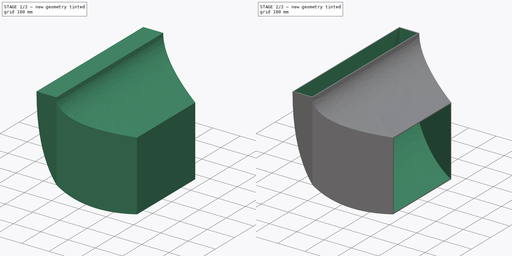
[diagram: build sequence overview — one tinted view per stage of 2, left to right]
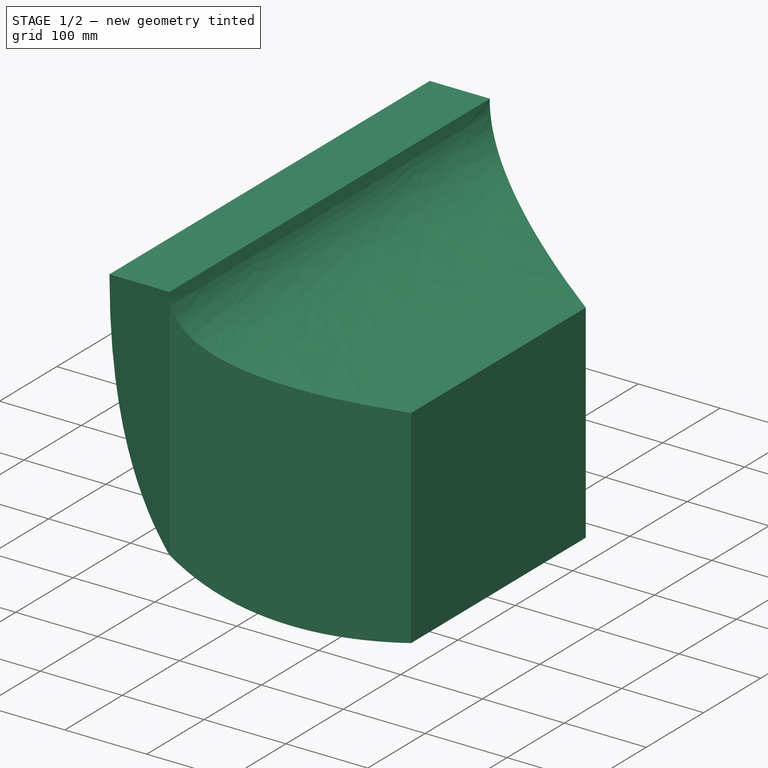
[diagram: stage 1 of 2 — iso view after this stage's code; geometry added in this stage tinted green]
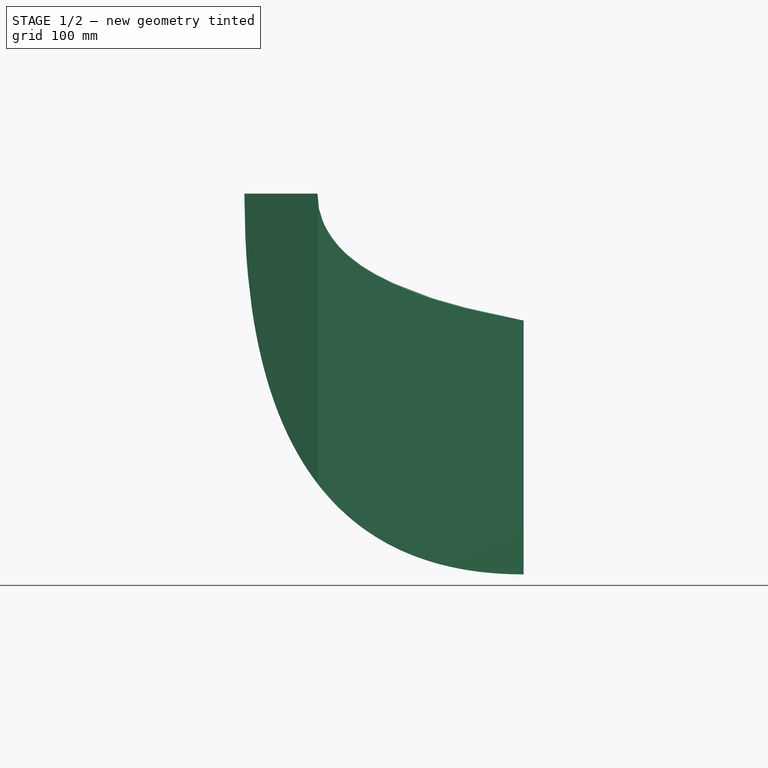
[diagram: stage 1 of 2 — front view after this stage's code; geometry added in this stage tinted green]
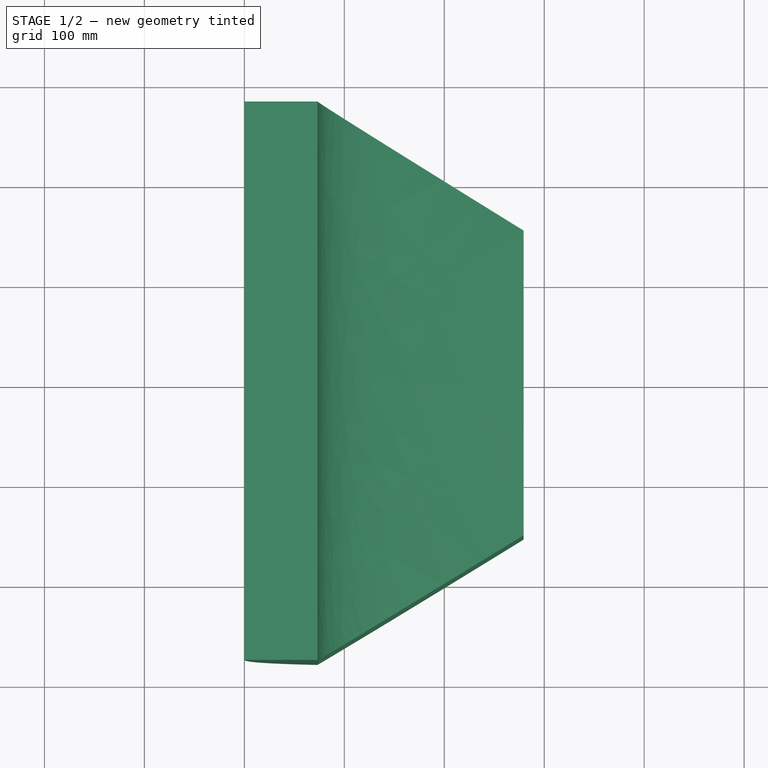
[diagram: stage 1 of 2 — top view after this stage's code; geometry added in this stage tinted green]
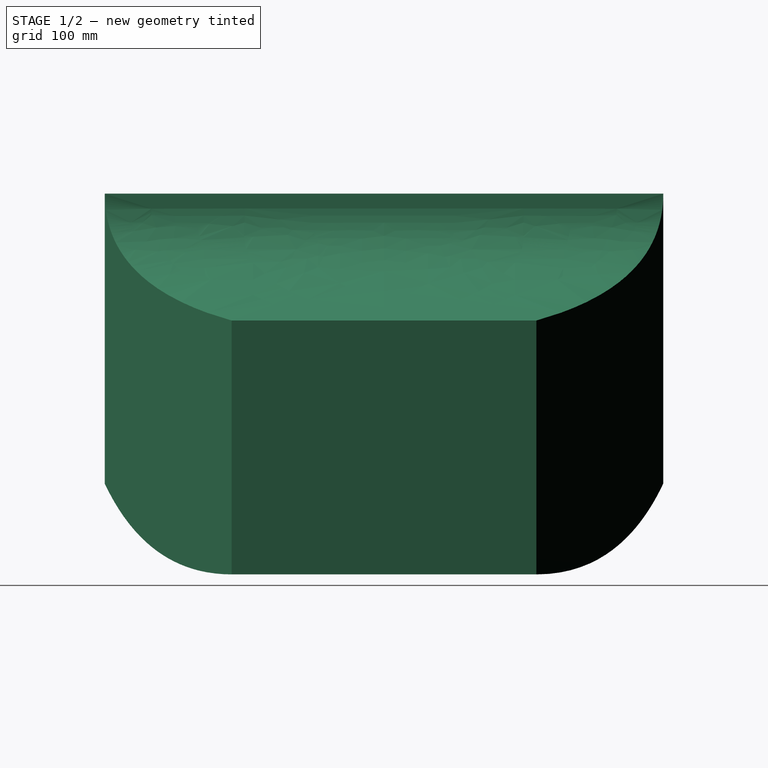
[diagram: stage 1 of 2 — right view after this stage's code; geometry added in this stage tinted green]
FCSTD DOCUMENT  (FreeCAD 1.1R40971 (Git))
Label: elbow
License: All rights reserved
LicenseURL: http://en.wikipedia.org/wiki/All_rights_reserved
objects: Sketcher::SketchObject×2, PartDesign::Pad×1, PartDesign::Pocket×1, App::Point×1, PartDesign::Thickness×1, PartDesign::Body×1
note: 14 computed .brp shape members not serialized (recipe doc carries the construction recipe); baked Part::Feature solids carry a one-line shape summary decoded from their .brp

FEATURE [Sketcher::SketchObject] Sketch001  label="elbowsk"
  ArcFitTolerance = 1e-06
  AttachmentSupport = -> [XZ_Plane]
  ExternalTypes = [0]
  FullyConstrained = false
  MakeInternals = false
  MapMode = 5
  Placement = pos=(0,0,0) rot=(1,0,0;1.5708rad)
  sketch-geometry (18):
    g0: LineSegment StartX=279.4 StartY=-234.95 StartZ=0 EndX=279.4 EndY=-488.95 EndZ=0
    g1: LineSegment [constr] StartX=279.4 StartY=-234.95 StartZ=0 EndX=558.8 EndY=-292.581 EndZ=0
    g2: LineSegment [constr] StartX=558.8 StartY=-292.581 StartZ=0 EndX=558.8 EndY=-444.981 EndZ=0
    g3: LineSegment [constr] StartX=558.8 StartY=-444.981 StartZ=0 EndX=279.4 EndY=-488.95 EndZ=0
    g4: LineSegment [constr] StartX=279.4 StartY=-361.95 StartZ=0 EndX=558.8 EndY=-371.348 EndZ=0
    g5: LineSegment StartX=0 StartY=-107.95 StartZ=0 EndX=73.152 EndY=-107.95 EndZ=0
    g6: Circle [constr] CenterX=0 CenterY=-107.95 CenterZ=0 NormalX=0 NormalY=0 NormalZ=1 AngleXU=0 Radius=1
    g7: Circle [constr] CenterX=0 CenterY=-488.95 CenterZ=0 NormalX=0 NormalY=0 NormalZ=1 AngleXU=0 Radius=1
    g8: Circle [constr] CenterX=279.4 CenterY=-488.95 CenterZ=0 NormalX=0 NormalY=0 NormalZ=1 AngleXU=0 Radius=1
    g9: BSplineCurve PolesCount=3 KnotsCount=2 Degree=2 IsPeriodic=0
    g10: GeomPoint [constr] X=0 Y=-107.95 Z=0
    g11: GeomPoint [constr] X=279.4 Y=-488.95 Z=0
    g12: Circle [constr] CenterX=73.152 CenterY=-107.95 CenterZ=0 NormalX=0 NormalY=0 NormalZ=1 AngleXU=0 Radius=1
    g13: Circle [constr] CenterX=73.152 CenterY=-199.743 CenterZ=0 NormalX=0 NormalY=0 NormalZ=1 AngleXU=0 Radius=1
    g14: Circle [constr] CenterX=279.4 CenterY=-234.95 CenterZ=0 NormalX=0 NormalY=0 NormalZ=1 AngleXU=0 Radius=1
    g15: BSplineCurve PolesCount=3 KnotsCount=2 Degree=2 IsPeriodic=0
    g16: GeomPoint [constr] X=73.152 Y=-107.95 Z=0
    g17: GeomPoint [constr] X=279.4 Y=-234.95 Z=0
  constraints (43):
    c: Vertical(g0)
    c: DistanceY(g0,g0) = 254
    c: Vertical(g2)
    c: DistanceX(g3,g3) = 279.4
    c: Coincident(g2,g3)
    c: Coincident(g1,g2)
    c: Coincident(g1,g0)
    c: DistanceY(g2,g1) = 152.4
    c: PointOnObject(g4,g2)
    c: Symmetric(g0,g0,g4)
    c: Horizontal(g5)
    c: DistanceY(g5,g-1) = 107.95
    c: DistanceX(g5,g5) = 73.152
    c: DistanceX(g5,g2) = 558.8
    c: Vertical(g5,g-1)
    c: Weight(g6) = 1
    c: Equal(g6,g7)
    c: Equal(g6,g8)
    c: InternalAlignment(g6,g9)
    c: InternalAlignment(g7,g9)
    c: InternalAlignment(g8,g9)
    c: InternalAlignment(g10,g9)
    c: InternalAlignment(g11,g9)
    c: Coincident(g6,g5)
    c: Coincident(g8,g0)
    c: Weight(g12) = 1
    c: Equal(g12,g13)
    c: Equal(g12,g14)
    c: InternalAlignment(g12,g15)
    c: InternalAlignment(g13,g15)
    c: InternalAlignment(g14,g15)
    c: InternalAlignment(g16,g15)
    c: InternalAlignment(g17,g15)
    c: Coincident(g12,g5)
    c: Coincident(g14,g0)
    c: DistanceY(g9,g4) = 117.602
    c: DistanceY(g9,g9) = 381
    c: DistanceX(g9,g9) = 279.4
    c: PointOnObject(g7,g-2)
    c: Vertical(g13,g15)
    c: Horizontal(g7,g9)
    c: Coincident(g9,g3)
    c: DistanceY(g4,g4) = 9.398
FEATURE [PartDesign::Pad] Pad
  Direction = (0,-1,2e-16)
  Length = 558.8
  Length2 = 10
  Midplane = true
  Placement = pos=(0,0,0) rot=(1,0,0;1.5708rad)
  Profile = -> Sketch001
  ReferenceAxis = -> Sketch001 [N_Axis]
  Suppressed = false
  Type = 0
FEATURE [Sketcher::SketchObject] Sketch005  label="straightwall"
  ArcFitTolerance = 1e-06
  AttachmentSupport = -> [XY_Plane]
  ExternalTypes = [0]
  FullyConstrained = true
  MakeInternals = false
  MapMode = 5
  sketch-geometry (17):
    g0: LineSegment StartX=73.152 StartY=279.4 StartZ=0 EndX=279.4 EndY=152.4 EndZ=0
    g1: LineSegment StartX=279.4 StartY=152.4 StartZ=0 EndX=279.4 EndY=-152.4 EndZ=0
    g2: LineSegment StartX=279.4 StartY=-152.4 StartZ=0 EndX=73.152 EndY=-279.4 EndZ=0
    g3: LineSegment StartX=73.152 StartY=-317.5 StartZ=0 EndX=352.552 EndY=-317.5 EndZ=0
    g4: LineSegment StartX=352.552 StartY=-317.5 StartZ=0 EndX=352.552 EndY=317.5 EndZ=0
    g5: LineSegment StartX=352.552 StartY=317.5 StartZ=0 EndX=73.152 EndY=317.5 EndZ=0
    g6: LineSegment [constr] StartX=73.152 StartY=279.4 StartZ=0 EndX=73.152 EndY=-279.4 EndZ=0
    g7: LineSegment StartX=73.152 StartY=279.4 StartZ=0 EndX=11.2776 EndY=317.5 EndZ=0
    g8: LineSegment StartX=73.152 StartY=317.5 StartZ=0 EndX=11.2776 EndY=317.5 EndZ=0
    g9: LineSegment StartX=73.152 StartY=-279.4 StartZ=0 EndX=11.2776 EndY=-317.5 EndZ=0
    g10: LineSegment StartX=11.2776 StartY=-317.5 StartZ=0 EndX=73.152 EndY=-317.5 EndZ=0
    g11: LineSegment [constr] StartX=0 StartY=317.5 StartZ=0 EndX=0 EndY=-317.5 EndZ=0
    g12: LineSegment [constr] StartX=0 StartY=279.4 StartZ=0 EndX=352.552 EndY=279.4 EndZ=0
    g13: LineSegment [constr] StartX=279.4 StartY=152.4 StartZ=0 EndX=558.8 EndY=76.2 EndZ=0
    g14: LineSegment [constr] StartX=558.8 StartY=76.2 StartZ=0 EndX=558.8 EndY=-76.2 EndZ=0
    g15: LineSegment [constr] StartX=558.8 StartY=-76.2 StartZ=0 EndX=279.4 EndY=-152.4 EndZ=0
    g16: LineSegment [constr] StartX=0 StartY=0 StartZ=0 EndX=558.8 EndY=0 EndZ=0
  constraints (49):
    c: Coincident(g0,g1)
    c: Coincident(g1,g2)
    c: DistanceY(g1,g1) = 304.8
    c: Symmetric(g0,g1,g-1)
    c: Symmetric(g2,g0,g-1)
    c: Coincident(g3,g4)
    c: Coincident(g4,g5)
    c: Horizontal(g3)
    c: Symmetric(g4,g3,g-1)
    c: DistanceY(g4,g4) = 635
    c: Vertical(g0,g3)
    c: Vertical(g5,g0)
    c: Horizontal(g5)
    c: Angle(g2,g-2) = 1.01887
    c: Coincident(g6,g0)
    c: Coincident(g6,g2)
    c: Coincident(g7,g0)
    c: Coincident(g8,g5)
    c: Coincident(g8,g7)
    c: Coincident(g9,g2)
    c: Coincident(g10,g9)
    c: Coincident(g10,g3)
    c: Horizontal(g10)
    c: Parallel(g9,g2)
    c: Horizontal(g8)
    c: Parallel(g7,g0)
    c: Vertical(g11)
    c: PointOnObject(g11,g10)
    c: PointOnObject(g11,g8)
    c: DistanceX(g11,g0) = 73.152
    c: PointOnObject(g11,g-2)
    c: DistanceX(g5,g5) = 279.4
    c: PointOnObject(g12,g11)
    c: PointOnObject(g12,g4)
    c: Horizontal(g12)
    c: DistanceY(g12,g4) = 38.1
    c: DistanceY(g2,g0) = 558.8
    c: DistanceX(g12,g0) = 279.4
    c: Coincident(g13,g0)
    c: Vertical(g14)
    c: Coincident(g15,g1)
    c: DistanceX(g1,g14) = 279.4
    c: DistanceX(g11,g14) = 558.8
    c: Coincident(g14,g15)
    c: Coincident(g14,g13)
    c: DistanceY(g14,g14) = 152.4
    c: Coincident(g16,g-1)
    c: Horizontal(g16)
    c: Symmetric(g14,g13,g16)
FEATURE [PartDesign::Pocket] Pocket
  BaseFeature = -> Pad
  Direction = (0,0,-1)
  Length = 5
  Length2 = 5
  Placement = pos=(0,0,0) rot=(1,0,0;1.5708rad)
  Profile = -> Sketch005
  ReferenceAxis = -> Sketch005 [N_Axis]
  Suppressed = false
  Type = 1
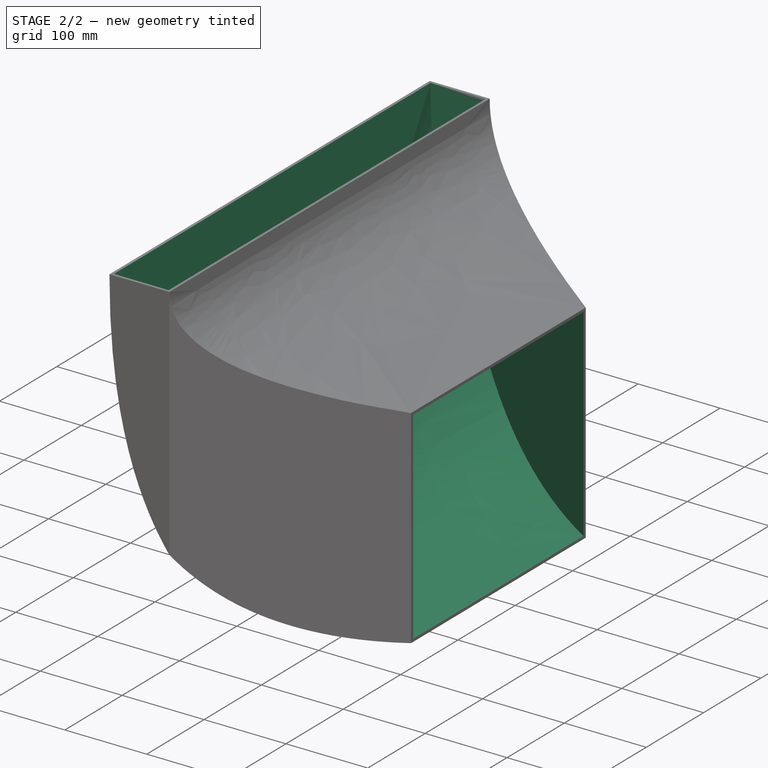
[diagram: stage 2 of 2 — iso view after this stage's code; geometry added in this stage tinted green]
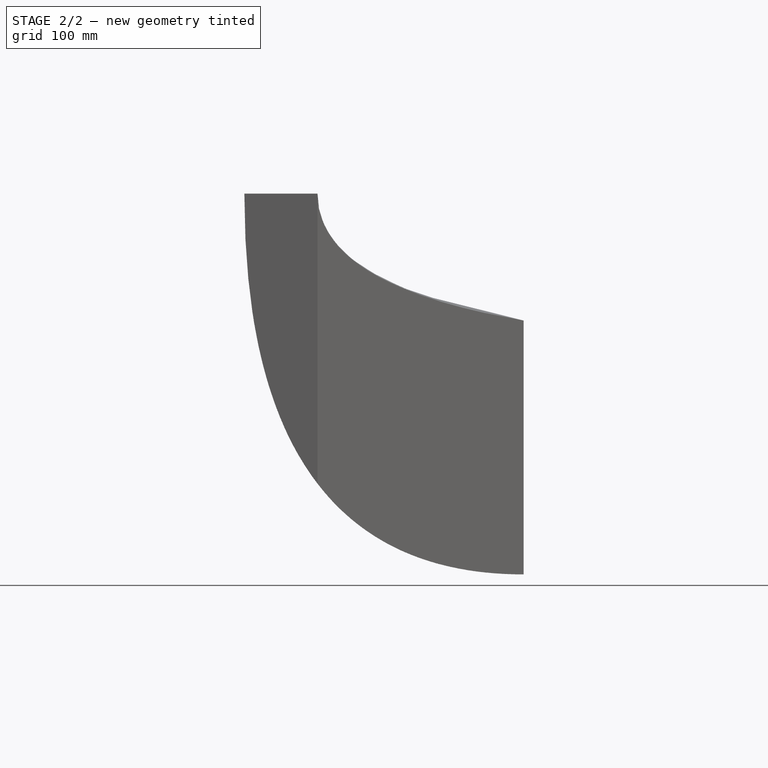
[diagram: stage 2 of 2 — front view after this stage's code; geometry added in this stage tinted green]
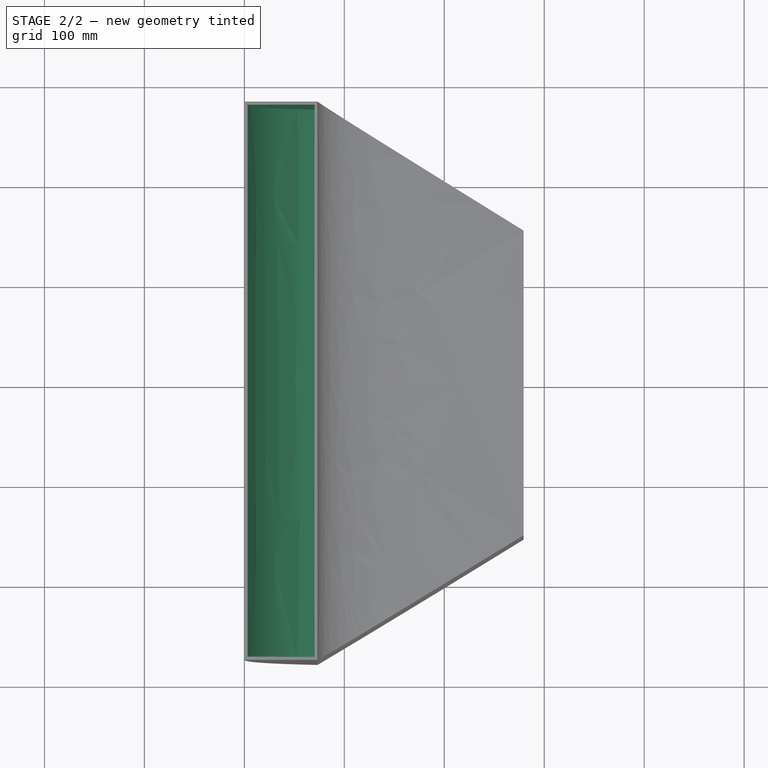
[diagram: stage 2 of 2 — top view after this stage's code; geometry added in this stage tinted green]
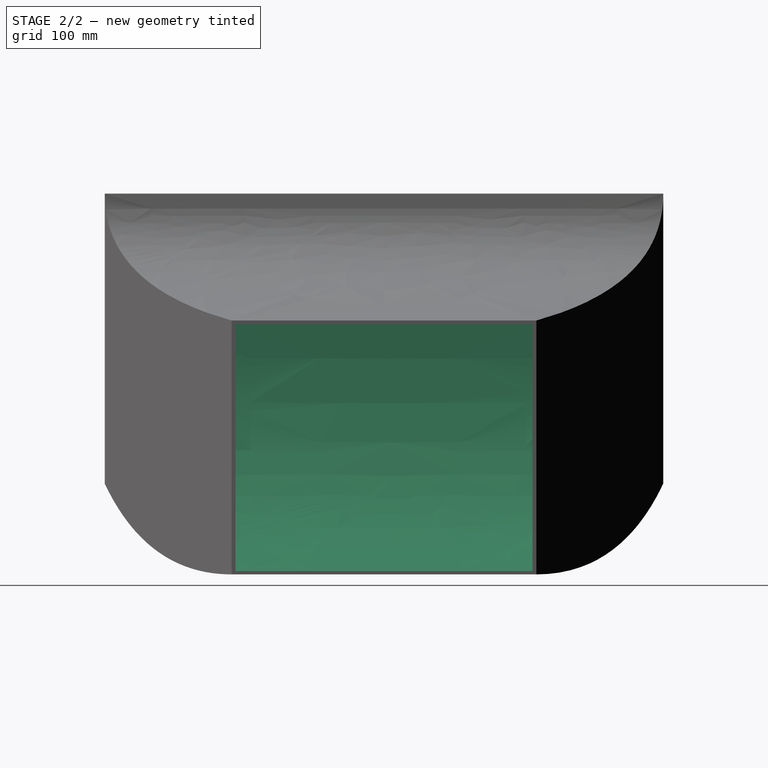
[diagram: stage 2 of 2 — right view after this stage's code; geometry added in this stage tinted green]
FEATURE [App::Point] Origin001  label="Origin"
  Role = Origin
FEATURE [PartDesign::Thickness] Thickness
  Base = -> Pocket [Face8,Face1]
  BaseFeature = -> Pocket
  Intersection = true
  Join = 1
  Mode = 1
  Reversed = true
  SupportTransform = false
  Suppressed = false
  Value = 3.302
FEATURE [PartDesign::Body] Body  label="elbow"
  AllowCompound = false
  Group = -> [Sketch001,Pad,Sketch005,Pocket,Thickness]
  Origin = -> Origin
  Tip = -> Thickness
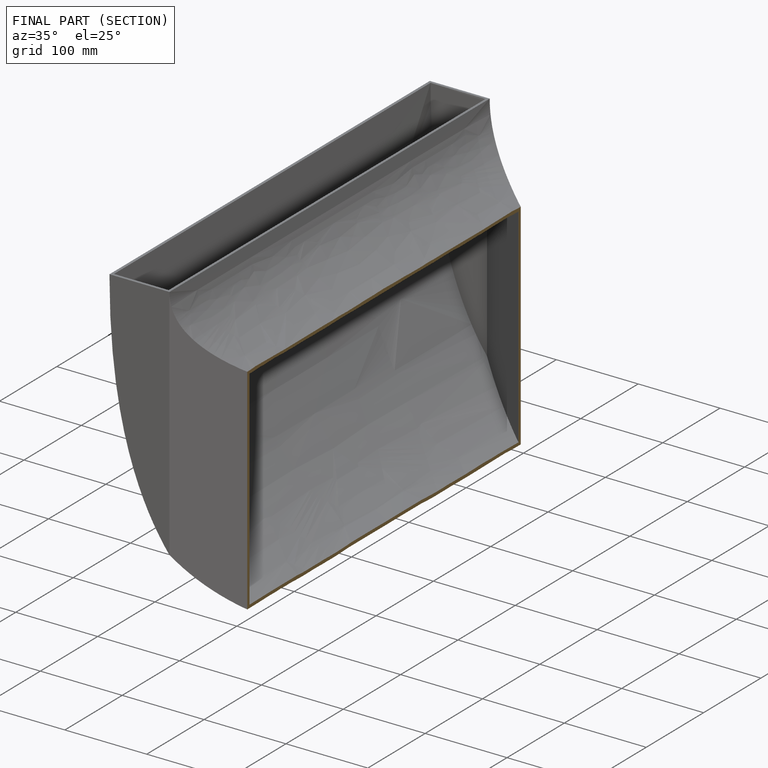
[diagram: finished part — half-section view (interior)]
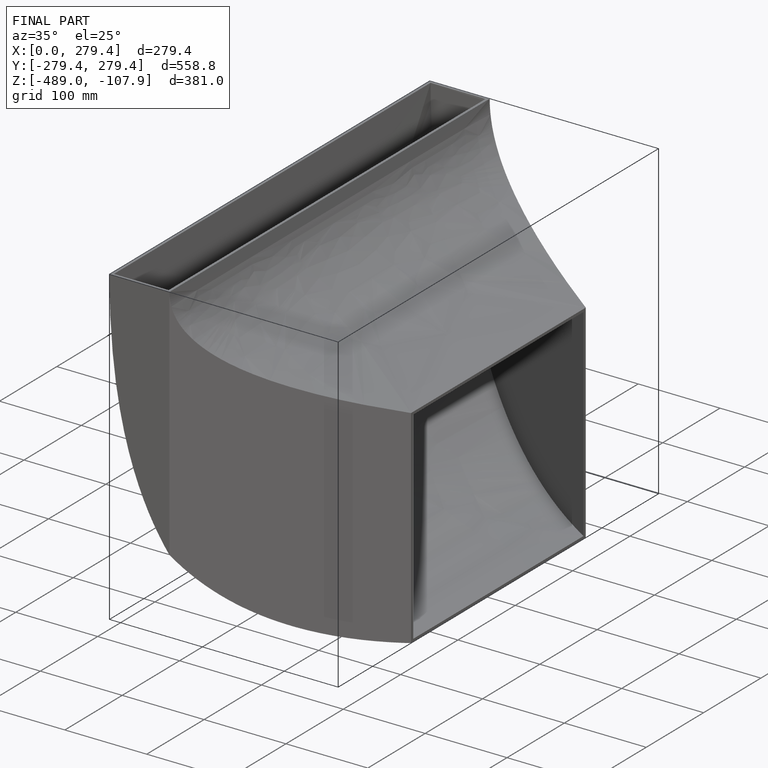
[diagram: finished part — iso view with bounding-box wireframe]
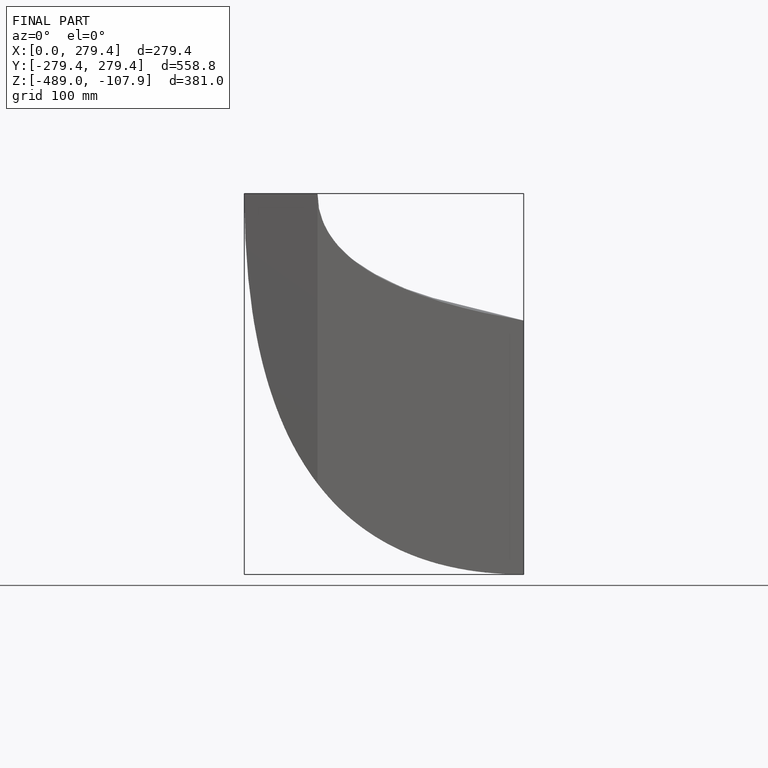
[diagram: finished part — front view with bounding-box wireframe]
